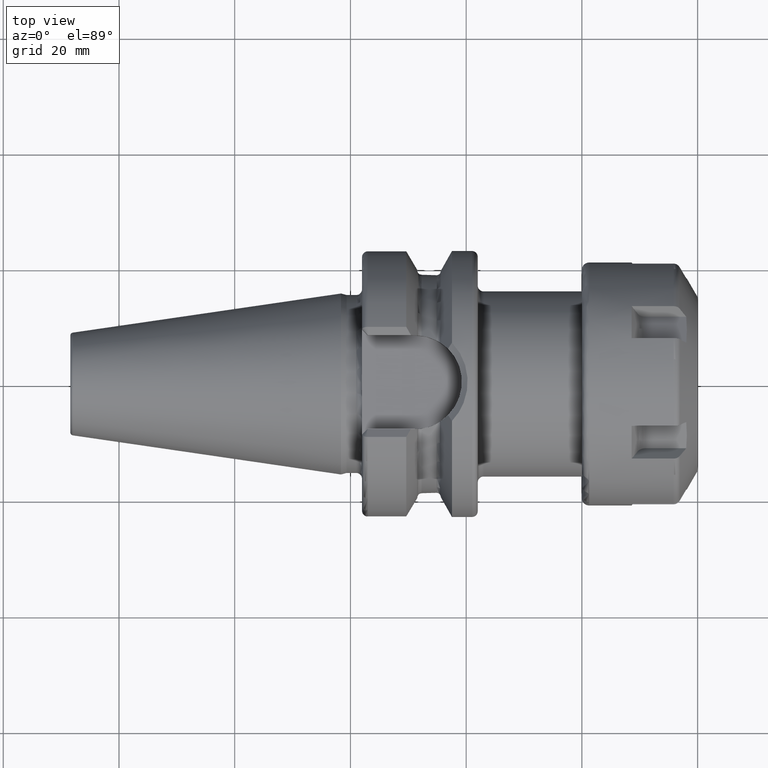
[diagram: clean part render]
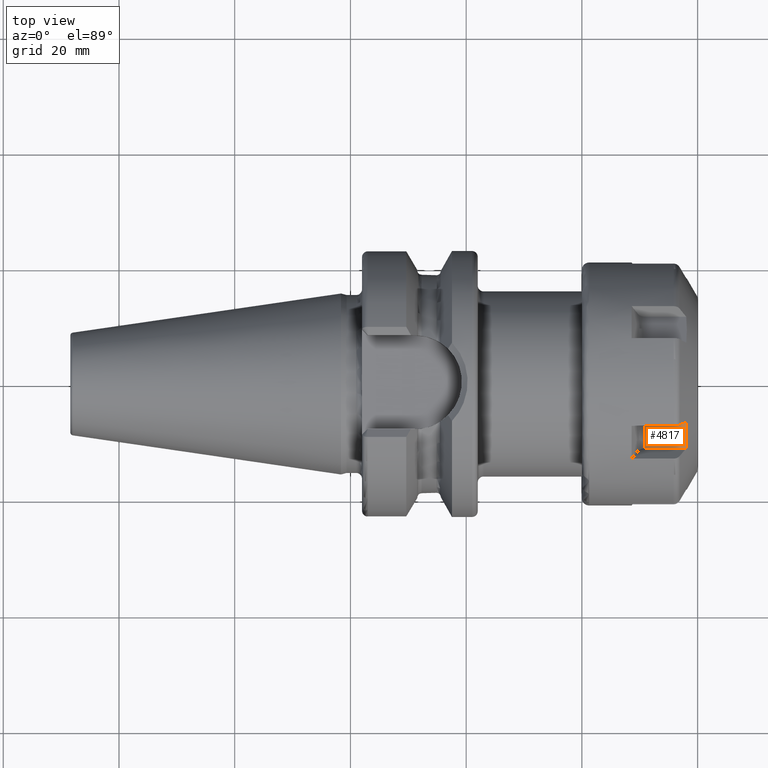
[diagram: same view with one face highlighted and labeled with its STEP entity id]
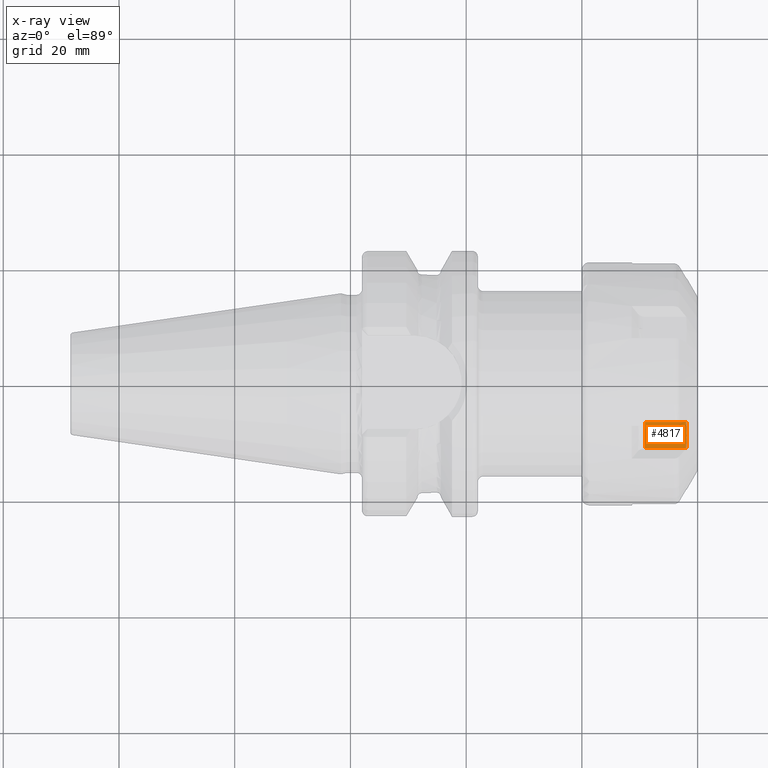
[diagram: x-ray of the same camera — body ghosted, the highlighted face saturated]
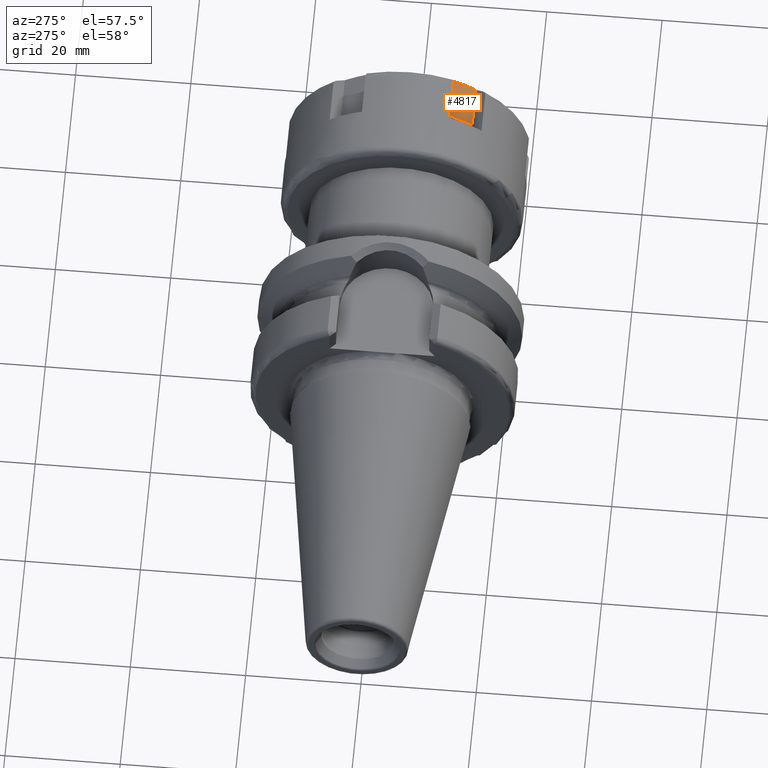
[diagram: same view with one face highlighted and labeled with its STEP entity id]
A machine part, top view. The second image highlights one B-rep face of the part: STEP entity #4817.
The next image is the same camera in x-ray: the body ghosted, the highlighted face saturated — about 0% of this face is hidden behind the body in this view.
A second angle (auxiliary view) of the same face is appended — the face is thin or edge-on in the first view.
In plain terms, the highlighted planar face has unit normal (0, 0.5, -0.866).
Its self-contained STEP definition (entity closure, byte-faithful):
#3453=CARTESIAN_POINT('',(1.803119743883E1,-1.136443912607E1,1.448378596587E1));
#3459=CARTESIAN_POINT('',(1.803119743883E1,-6.861107026386E0,1.708378596587E1));
#3460=CARTESIAN_POINT('',(1.807831826555E1,-7.361586372305E0,1.679483408078E1));
#3461=CARTESIAN_POINT('',(1.814168574823E1,-8.362425592320E0,1.621699928769E1));
#3462=CARTESIAN_POINT('',(1.814168449187E1,-9.863151221670E0,1.535055494160E1));
#3463=CARTESIAN_POINT('',(1.807831703246E1,-1.086397287704E1,1.477273028946E1));
#3464=CARTESIAN_POINT('',(1.803119743883E1,-1.136443912607E1,1.448378596587E1));
#3470=CARTESIAN_POINT('',(1.803119743883E1,-6.861107026386E0,1.708378596587E1));
#3791=CARTESIAN_POINT('',(1.091113881527E1,-6.861107028238E0,1.708378597059E1));
#3797=DIRECTION('',(-1.E0,-2.600749620586E-10,6.627068754585E-10));
#3798=VECTOR('',#3797,7.120058623564E0);
#3799=CARTESIAN_POINT('',(1.803119743883E1,-6.861107026386E0,1.708378596587E1));
#3800=LINE('',#3799,#3798);
#3801=CARTESIAN_POINT('',(1.091113747860E1,-1.136443912681E1,1.448378596699E1));
#3813=CARTESIAN_POINT('',(1.091113881527E1,-6.861107028238E0,1.708378597059E1));
#3814=CARTESIAN_POINT('',(1.092865653647E1,-7.061178081398E0,1.696827487175E1));
#3815=CARTESIAN_POINT('',(1.096119172920E1,-7.483856760262E0,1.672424124711E1));
#3816=CARTESIAN_POINT('',(1.099758211683E1,-8.203344710008E0,1.630884467581E1));
#3817=CARTESIAN_POINT('',(1.101325415215E1,-8.956262504904E0,1.587414738702E1));
#3818=CARTESIAN_POINT('',(1.100709161601E1,-9.666574718729E0,1.546404843793E1));
#3819=CARTESIAN_POINT('',(1.098479432369E1,-1.029984759251E1,1.509842817594E1));
#3820=CARTESIAN_POINT('',(1.095250332830E1,-1.085631427438E1,1.477715197994E1));
#3821=CARTESIAN_POINT('',(1.092546328394E1,-1.120082054068E1,1.457825121272E1));
#3822=CARTESIAN_POINT('',(1.091113747860E1,-1.136443912681E1,1.448378596699E1));
#3824=DIRECTION('',(-1.E0,-1.050718696419E-10,1.574265527247E-10));
#3825=VECTOR('',#3824,7.120059960230E0);
#3826=CARTESIAN_POINT('',(1.803119743883E1,-1.136443912607E1,1.448378596587E1));
#3827=LINE('',#3826,#3825);
#3968=VERTEX_POINT('',#3470);
#3969=VERTEX_POINT('',#3453);
#3977=VERTEX_POINT('',#3801);
#3980=VERTEX_POINT('',#3791);
#4806=CARTESIAN_POINT('',(2.E1,-1.136443912607E1,1.448378596587E1));
#4807=DIRECTION('',(0.E0,5.E-1,-8.660254037844E-1));
#4808=DIRECTION('',(0.E0,8.660254037844E-1,5.E-1));
#4809=AXIS2_PLACEMENT_3D('',#4806,#4807,#4808);
#4810=PLANE('',#4809);
#4811=ORIENTED_EDGE('',*,*,#4785,.F.);
#4812=ORIENTED_EDGE('',*,*,#4730,.F.);
#4813=ORIENTED_EDGE('',*,*,#4379,.T.);
#4814=ORIENTED_EDGE('',*,*,#4796,.T.);
#4815=EDGE_LOOP('',(#4811,#4812,#4813,#4814));
#4816=FACE_OUTER_BOUND('',#4815,.F.);
#4817=ADVANCED_FACE('',(#4816),#4810,.F.);
#3465=B_SPLINE_CURVE_WITH_KNOTS('',3,(#3459,#3460,#3461,#3462,#3463,#3464),
.UNSPECIFIED.,.F.,.F.,(4,1,1,4),(0.E0,3.333333333333E-1,6.666666666667E-1,1.E0),
.UNSPECIFIED.);
#3823=B_SPLINE_CURVE_WITH_KNOTS('',3,(#3813,#3814,#3815,#3816,#3817,#3818,#3819,
#3820,#3821,#3822),.UNSPECIFIED.,.F.,.F.,(4,1,1,1,1,1,1,4),(0.E0,
1.428571428571E-1,2.857142857143E-1,4.285714285714E-1,5.714285714286E-1,
7.142857142857E-1,8.571428571429E-1,1.E0),.UNSPECIFIED.);
#4379=EDGE_CURVE('',#3968,#3969,#3465,.T.);
#4730=EDGE_CURVE('',#3968,#3980,#3800,.T.);
#4785=EDGE_CURVE('',#3980,#3977,#3823,.T.);
#4796=EDGE_CURVE('',#3969,#3977,#3827,.T.);